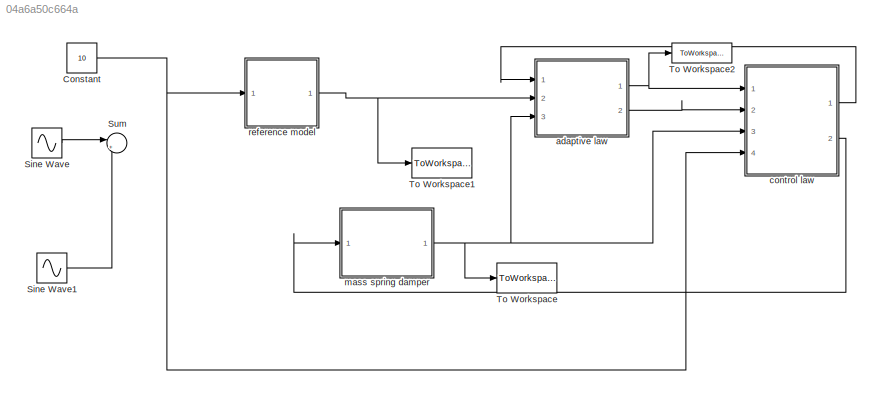
MODEL slx_04a6a50c664a
KIND model
CONFIG AbsTol = auto
CONFIG EnableMultiTasking = off
CONFIG FixedStep = auto
CONFIG MaxStep = auto
CONFIG MinStep = auto
CONFIG RelTol = 1e-3
CONFIG SampleTimeConstraint = Unconstrained
CONFIG Solver = VariableStepAuto
CONFIG SolverName = VariableStepAuto
CONFIG StartTime = 0.0
CONFIG StopTime = 40.0
BLOCK [Constant] Constant
  Value = 10
BLOCK [Sin] Sine Wave
  Amplitude = 2
  Frequency = 3
  Ports = [0, 1]
  SampleTime = 0
BLOCK [Sin] Sine Wave1
  Amplitude = 5
  Ports = [0, 1]
  SampleTime = 0
BLOCK [Sum] Sum
  IconShape = round
  InputSameDT = off
  Inputs = |++
  OutDataTypeStr = Inherit: Inherit via internal rule
  Ports = [2, 1]
  SaturateOnIntegerOverflow = off
BLOCK [ToWorkspace] To Workspace
  FixptAsFi = on
  MaxDataPoints = inf
  Ports = [1]
  SampleTime = -1
  Save2DSignal = 3-D array (concatenate along third dimension)
  SaveFormat = Structure With Time
  VariableName = y_p
BLOCK [ToWorkspace] To Workspace1
  FixptAsFi = on
  MaxDataPoints = inf
  Ports = [1]
  SampleTime = -1
  Save2DSignal = 3-D array (concatenate along third dimension)
  SaveFormat = Structure With Time
  VariableName = y_m
BLOCK [ToWorkspace] To Workspace2
  FixptAsFi = on
  MaxDataPoints = inf
  Ports = [1]
  SampleTime = -1
  Save2DSignal = 3-D array (concatenate along third dimension)
  SaveFormat = Structure With Time
  VariableName = theta_2
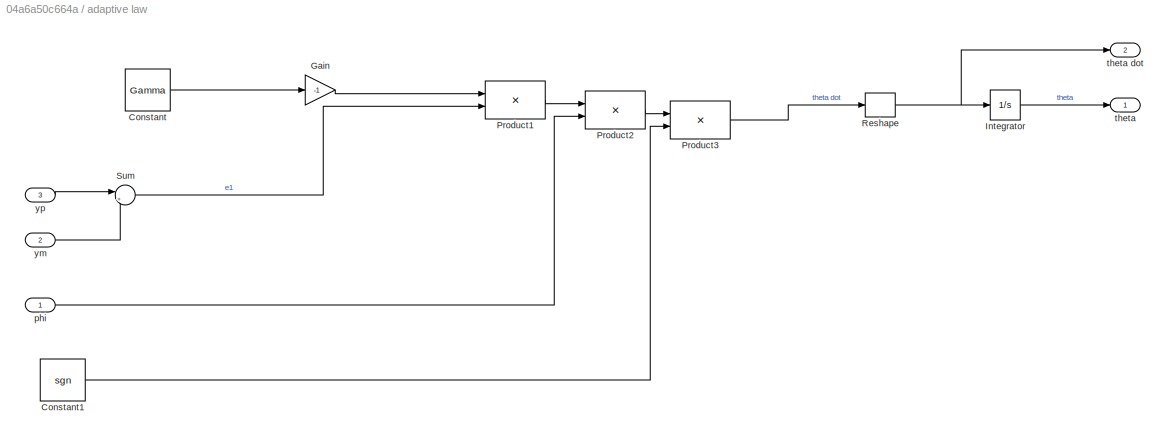
BLOCK [SubSystem] adaptive law
  Ports = [3, 2]
  RequestExecContextInheritance = off
BLOCK [Constant] adaptive law/Constant
  Value = Gamma
BLOCK [Constant] adaptive law/Constant1
  Value = sgn
BLOCK [Gain] adaptive law/Gain
  Gain = -1
  OutDataTypeStr = Inherit: Inherit via internal rule
  ParamDataTypeStr = Inherit: Inherit via internal rule
  SaturateOnIntegerOverflow = off
BLOCK [Integrator] adaptive law/Integrator
  InitialCondition = [0; 0; 0; 0]
  Ports = [1, 1]
BLOCK [Product] adaptive law/Product1
  InputSameDT = off
  OutDataTypeStr = Inherit: Inherit via internal rule
  Ports = [2, 1]
  RndMeth = Floor
  SaturateOnIntegerOverflow = off
BLOCK [Product] adaptive law/Product2
  InputSameDT = off
  Multiplication = Matrix(*)
  OutDataTypeStr = Inherit: Inherit via internal rule
  Ports = [2, 1]
  RndMeth = Floor
  SaturateOnIntegerOverflow = off
BLOCK [Product] adaptive law/Product3
  InputSameDT = off
  OutDataTypeStr = Inherit: Inherit via internal rule
  Ports = [2, 1]
  RndMeth = Floor
  SaturateOnIntegerOverflow = off
BLOCK [Reshape] adaptive law/Reshape
  OutputDimensionality = Column vector (2-D)
  Ports = [1, 1]
BLOCK [Sum] adaptive law/Sum
  IconShape = round
  InputSameDT = off
  Inputs = |+-
  OutDataTypeStr = Inherit: Inherit via internal rule
  Ports = [2, 1]
  SaturateOnIntegerOverflow = off
BLOCK [Inport] adaptive law/phi
  IconDisplay = Port number
BLOCK [Outport] adaptive law/theta
  IconDisplay = Port number
BLOCK [Outport] adaptive law/theta dot
  IconDisplay = Port number
  Port = 2
BLOCK [Inport] adaptive law/ym
  IconDisplay = Port number
  Port = 2
BLOCK [Inport] adaptive law/yp
  IconDisplay = Port number
  Port = 3
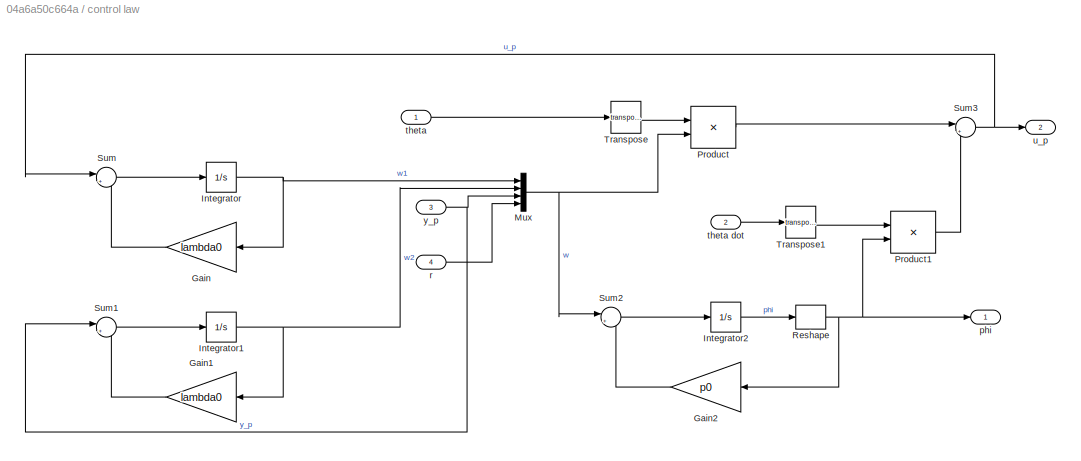
BLOCK [SubSystem] control law
  Ports = [4, 2]
  RequestExecContextInheritance = off
BLOCK [Gain] control law/Gain
  Gain = lambda0
  OutDataTypeStr = Inherit: Inherit via internal rule
  ParamDataTypeStr = Inherit: Inherit via internal rule
  SaturateOnIntegerOverflow = off
BLOCK [Gain] control law/Gain1
  Gain = lambda0
  OutDataTypeStr = Inherit: Inherit via internal rule
  ParamDataTypeStr = Inherit: Inherit via internal rule
  SaturateOnIntegerOverflow = off
BLOCK [Gain] control law/Gain2
  Gain = p0
  OutDataTypeStr = Inherit: Inherit via internal rule
  ParamDataTypeStr = Inherit: Inherit via internal rule
  SaturateOnIntegerOverflow = off
BLOCK [Integrator] control law/Integrator
  Ports = [1, 1]
BLOCK [Integrator] control law/Integrator1
  Ports = [1, 1]
BLOCK [Integrator] control law/Integrator2
  InitialCondition = [0; 0; 0; 0]
  Ports = [1, 1]
BLOCK [Mux] control law/Mux
  DisplayOption = bar
  Ports = [4, 1]
BLOCK [Product] control law/Product
  InputSameDT = off
  Multiplication = Matrix(*)
  OutDataTypeStr = Inherit: Inherit via internal rule
  Ports = [2, 1]
  RndMeth = Floor
  SaturateOnIntegerOverflow = off
BLOCK [Product] control law/Product1
  InputSameDT = off
  Multiplication = Matrix(*)
  OutDataTypeStr = Inherit: Inherit via internal rule
  Ports = [2, 1]
  RndMeth = Floor
  SaturateOnIntegerOverflow = off
BLOCK [Reshape] control law/Reshape
  OutputDimensionality = Column vector (2-D)
  Ports = [1, 1]
BLOCK [Sum] control law/Sum
  IconShape = round
  InputSameDT = off
  Inputs = |+-
  OutDataTypeStr = Inherit: Inherit via internal rule
  Ports = [2, 1]
  SaturateOnIntegerOverflow = off
BLOCK [Sum] control law/Sum1
  IconShape = round
  InputSameDT = off
  Inputs = |+-
  OutDataTypeStr = Inherit: Inherit via internal rule
  Ports = [2, 1]
  SaturateOnIntegerOverflow = off
BLOCK [Sum] control law/Sum2
  IconShape = round
  InputSameDT = off
  Inputs = |+-
  OutDataTypeStr = Inherit: Inherit via internal rule
  Ports = [2, 1]
  SaturateOnIntegerOverflow = off
BLOCK [Sum] control law/Sum3
  IconShape = round
  InputSameDT = off
  Inputs = |++
  OutDataTypeStr = Inherit: Inherit via internal rule
  Ports = [2, 1]
  SaturateOnIntegerOverflow = off
BLOCK [Math] control law/Transpose
  Operator = transpose
  Ports = [1, 1]
BLOCK [Math] control law/Transpose1
  Operator = transpose
  Ports = [1, 1]
BLOCK [Outport] control law/phi
  IconDisplay = Port number
BLOCK [Inport] control law/r
  IconDisplay = Port number
  Port = 4
BLOCK [Inport] control law/theta
  IconDisplay = Port number
BLOCK [Inport] control law/theta dot
  IconDisplay = Port number
  Port = 2
BLOCK [Outport] control law/u_p
  IconDisplay = Port number
  Port = 2
BLOCK [Inport] control law/y_p
  IconDisplay = Port number
  Port = 3
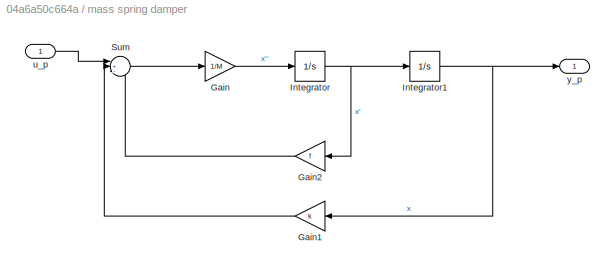
BLOCK [SubSystem] mass spring damper
  Ports = [1, 1]
  RequestExecContextInheritance = off
BLOCK [Gain] mass spring damper/Gain
  Gain = 1/M
  OutDataTypeStr = Inherit: Inherit via internal rule
  ParamDataTypeStr = Inherit: Inherit via internal rule
  SaturateOnIntegerOverflow = off
BLOCK [Gain] mass spring damper/Gain1
  Gain = k
  OutDataTypeStr = Inherit: Inherit via internal rule
  ParamDataTypeStr = Inherit: Inherit via internal rule
  SaturateOnIntegerOverflow = off
BLOCK [Gain] mass spring damper/Gain2
  Gain = f
  OutDataTypeStr = Inherit: Inherit via internal rule
  ParamDataTypeStr = Inherit: Inherit via internal rule
  SaturateOnIntegerOverflow = off
BLOCK [Integrator] mass spring damper/Integrator
  Ports = [1, 1]
BLOCK [Integrator] mass spring damper/Integrator1
  Ports = [1, 1]
BLOCK [Sum] mass spring damper/Sum
  IconShape = round
  InputSameDT = off
  Inputs = |+--
  OutDataTypeStr = Inherit: Inherit via internal rule
  Ports = [3, 1]
  SaturateOnIntegerOverflow = off
BLOCK [Inport] mass spring damper/u_p
  IconDisplay = Port number
BLOCK [Outport] mass spring damper/y_p
  IconDisplay = Port number
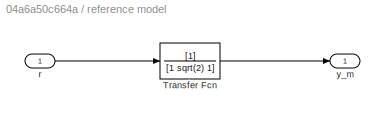
BLOCK [SubSystem] reference model
  Ports = [1, 1]
  RequestExecContextInheritance = off
BLOCK [TransferFcn] reference model/Transfer Fcn
  Denominator = [1 sqrt(2) 1]
BLOCK [Inport] reference model/r
  IconDisplay = Port number
BLOCK [Outport] reference model/y_m
  IconDisplay = Port number
NET Constant:1 -> control law:4, reference model:1
LINE Sine Wave1:1 -> Sum:2
LINE Sine Wave:1 -> Sum:1
LINE adaptive law/Constant1:1 -> adaptive law/Product3:2
LINE adaptive law/Constant:1 -> adaptive law/Gain:1
LINE adaptive law/Gain:1 -> adaptive law/Product1:1
LINE adaptive law/Integrator:1 -> adaptive law/theta:1
LINE adaptive law/Product1:1 -> adaptive law/Product2:1
LINE adaptive law/Product2:1 -> adaptive law/Product3:1
LINE adaptive law/Product3:1 -> adaptive law/Reshape:1
NET adaptive law/Reshape:1 -> adaptive law/Integrator:1, adaptive law/theta dot:1
LINE adaptive law/Sum:1 -> adaptive law/Product1:2
LINE adaptive law/phi:1 -> adaptive law/Product2:2
LINE adaptive law/ym:1 -> adaptive law/Sum:2
LINE adaptive law/yp:1 -> adaptive law/Sum:1
NET adaptive law:1 -> To Workspace2:1, control law:1
LINE adaptive law:2 -> control law:2
LINE control law/Gain1:1 -> control law/Sum1:2
LINE control law/Gain2:1 -> control law/Sum2:2
LINE control law/Gain:1 -> control law/Sum:2
NET control law/Integrator1:1 -> control law/Gain1:1, control law/Mux:2
LINE control law/Integrator2:1 -> control law/Reshape:1
NET control law/Integrator:1 -> control law/Gain:1, control law/Mux:1
NET control law/Mux:1 -> control law/Product:2, control law/Sum2:1
LINE control law/Product1:1 -> control law/Sum3:2
LINE control law/Product:1 -> control law/Sum3:1
NET control law/Reshape:1 -> control law/Gain2:1, control law/Product1:2, control law/phi:1
LINE control law/Sum1:1 -> control law/Integrator1:1
LINE control law/Sum2:1 -> control law/Integrator2:1
NET control law/Sum3:1 -> control law/Sum:1, control law/u_p:1
LINE control law/Sum:1 -> control law/Integrator:1
LINE control law/Transpose1:1 -> control law/Product1:1
LINE control law/Transpose:1 -> control law/Product:1
LINE control law/r:1 -> control law/Mux:4
LINE control law/theta dot:1 -> control law/Transpose1:1
LINE control law/theta:1 -> control law/Transpose:1
NET control law/y_p:1 -> control law/Mux:3, control law/Sum1:1
LINE control law:1 -> adaptive law:1
LINE control law:2 -> mass spring damper:1
LINE mass spring damper/Gain1:1 -> mass spring damper/Sum:2
LINE mass spring damper/Gain2:1 -> mass spring damper/Sum:3
LINE mass spring damper/Gain:1 -> mass spring damper/Integrator:1
NET mass spring damper/Integrator1:1 -> mass spring damper/Gain1:1, mass spring damper/y_p:1
NET mass spring damper/Integrator:1 -> mass spring damper/Gain2:1, mass spring damper/Integrator1:1
LINE mass spring damper/Sum:1 -> mass spring damper/Gain:1
LINE mass spring damper/u_p:1 -> mass spring damper/Sum:1
NET mass spring damper:1 -> To Workspace:1, adaptive law:3, control law:3
LINE reference model/Transfer Fcn:1 -> reference model/y_m:1
LINE reference model/r:1 -> reference model/Transfer Fcn:1
NET reference model:1 -> To Workspace1:1, adaptive law:2
note: NET lines group one-source signal fan-out (src -> all destinations, sorted); 1:1 wires keep LINE
